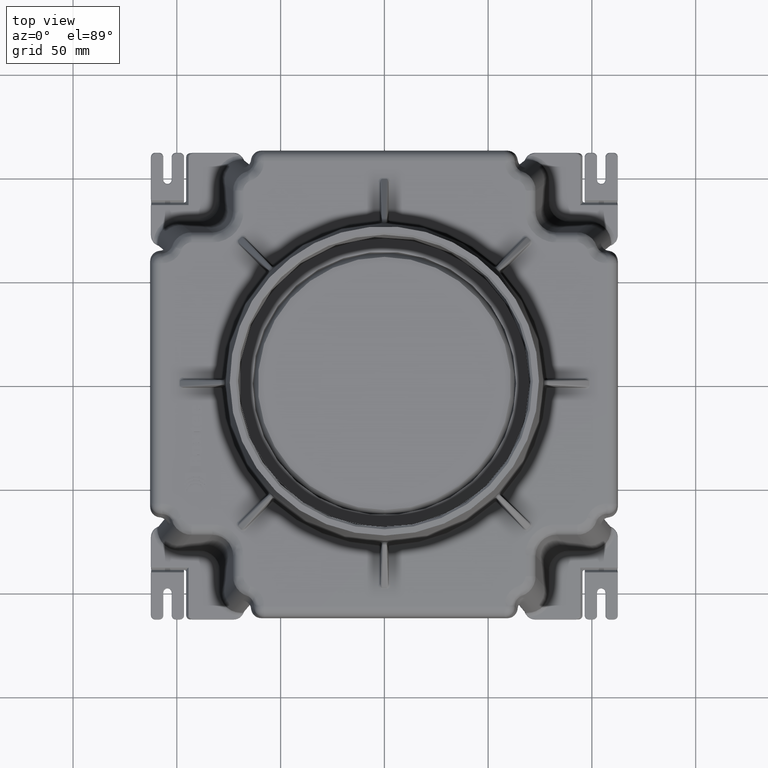
[diagram: clean part render]
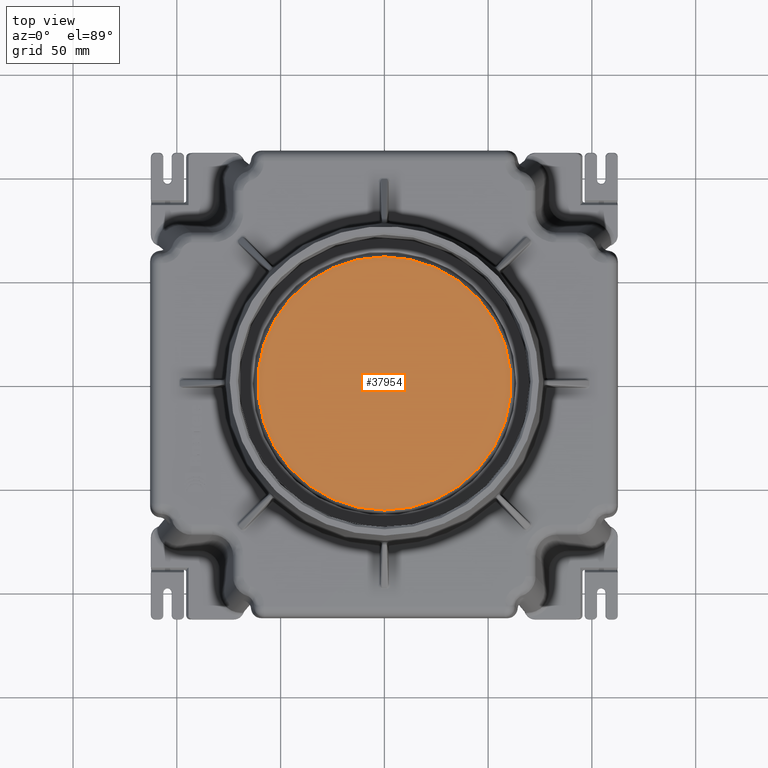
[diagram: same view with one face highlighted and labeled with its STEP entity id]
A machine part, top view. The second image highlights one B-rep face of the part: STEP entity #37954.
In plain terms, the highlighted planar face has unit normal (0, 0, 1).
Its self-contained STEP definition (entity closure, byte-faithful):
#37938=CARTESIAN_POINT('',(0.0,-30.499999999999993,-2.000000000000007));
#37939=DIRECTION('',(0.0,0.0,1.0));
#37940=DIRECTION('',(1.0,0.0,0.0));
#37941=AXIS2_PLACEMENT_3D('',#37938,#37939,#37940);
#37942=PLANE('',#37941);
#37943=CARTESIAN_POINT('',(0.0,-60.999999999999986,-2.000000000000015));
#37944=VERTEX_POINT('',#37943);
#37945=CARTESIAN_POINT('',(0.0,0.0,-2.000000000000015));
#37946=DIRECTION('',(0.0,0.0,1.0));
#37947=DIRECTION('',(0.0,-1.0,0.0));
#37948=AXIS2_PLACEMENT_3D('',#37945,#37946,#37947);
#37949=CIRCLE('',#37948,60.999999999999986);
#37950=EDGE_CURVE('',#37944,#37944,#37949,.T.);
#37951=ORIENTED_EDGE('',*,*,#37950,.T.);
#37952=EDGE_LOOP('',(#37951));
#37953=FACE_OUTER_BOUND('',#37952,.T.);
#37954=ADVANCED_FACE('',(#37953),#37942,.T.);